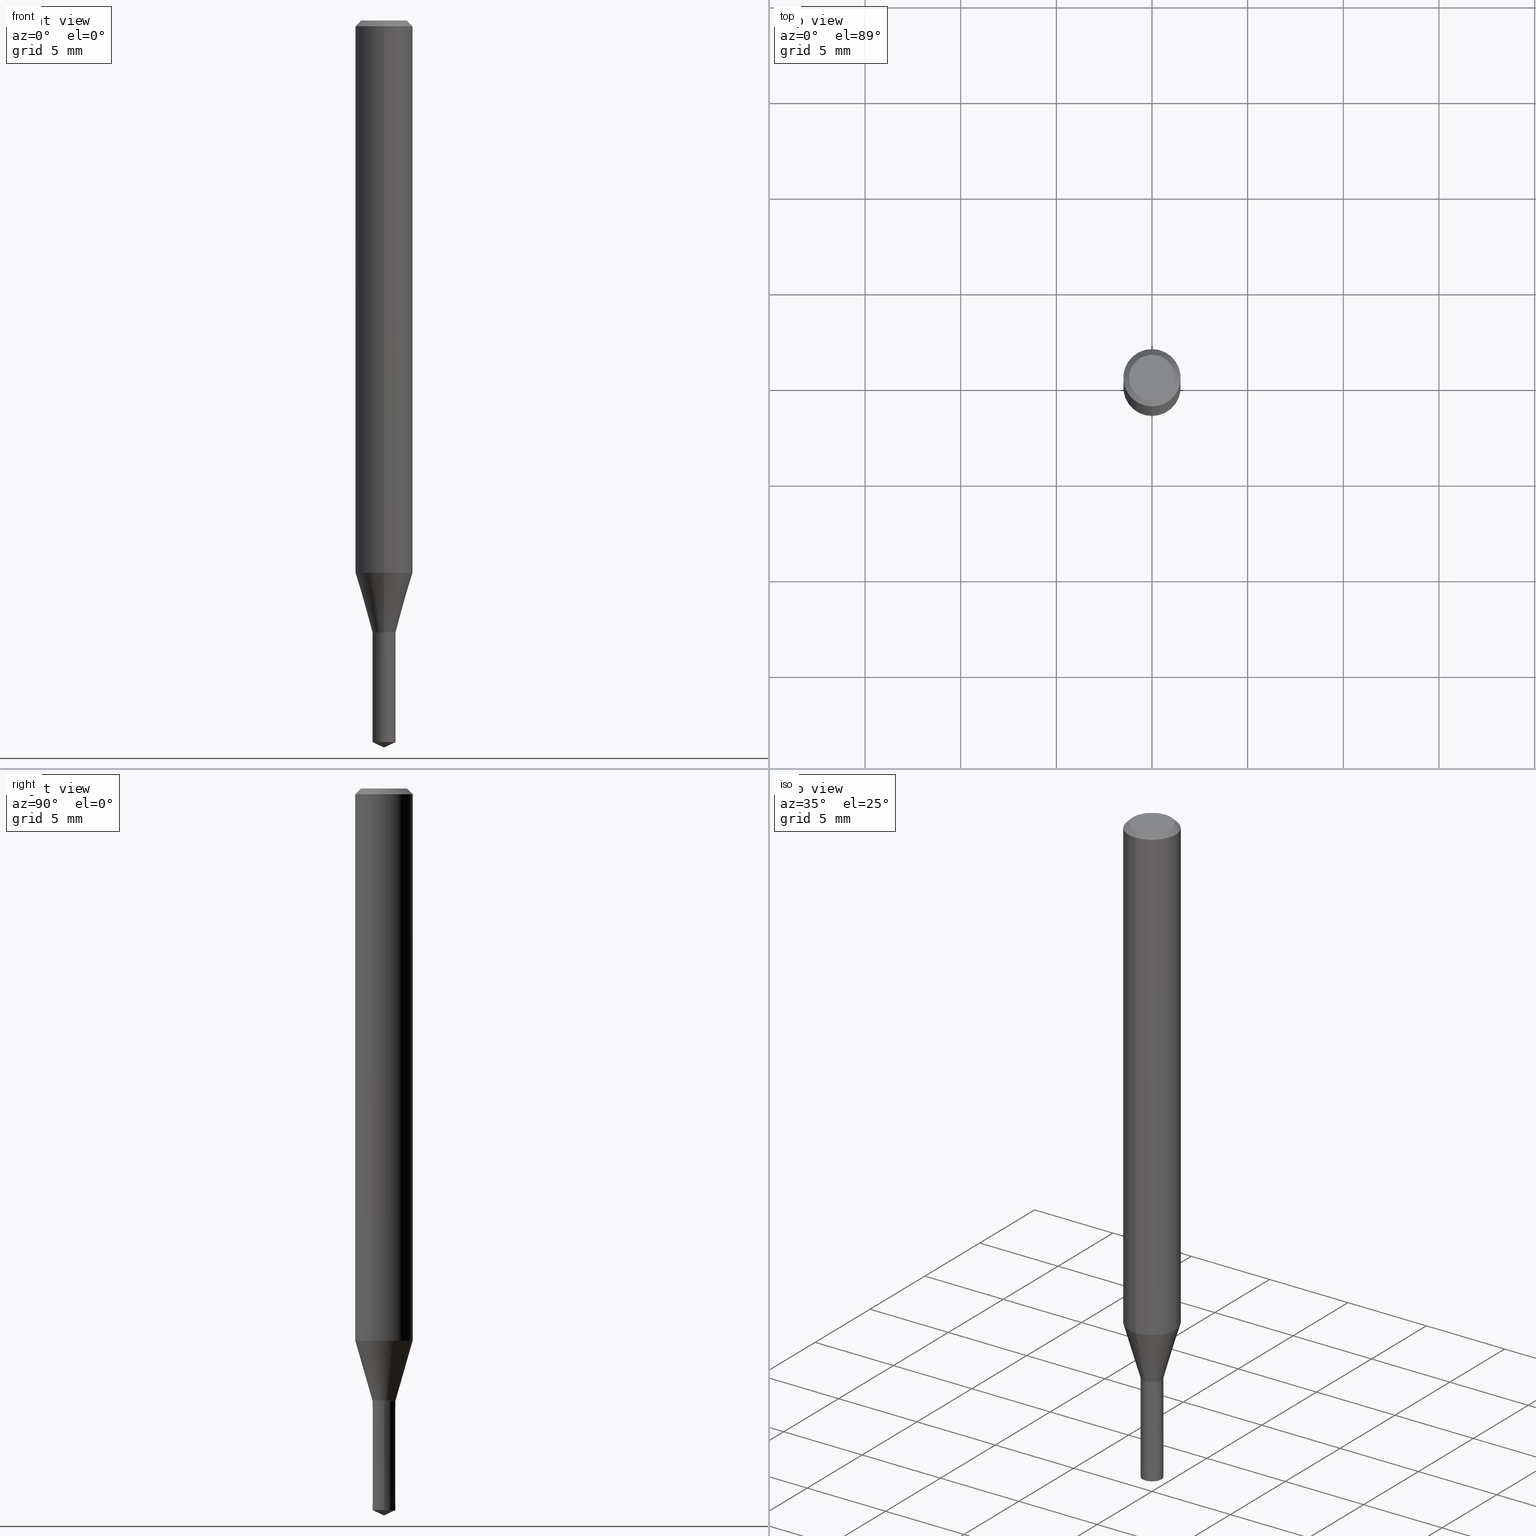
[diagram: canonical four-view strip — front | top / right | iso, engineering-drawing reading convention]
A machine part, canonical four-view strip (front | top / right | iso — engineering-drawing reading convention). The complete STEP part file that produces these views, byte-faithful:
ISO-10303-21;
HEADER;
FILE_DESCRIPTION(('no description'),'unknown implementation level');
FILE_NAME('UTDSX2120-060-Huellk.stp','  ',('CIMSOURCE GmbH'),('CADClick - KiM GmbH - www.kimweb.de'),'unknown preprocess','ACIS','unknown authorization');
FILE_SCHEMA(('automotive_design'));
ENDSEC;
DATA;
#1=MECHANICAL_DESIGN_GEOMETRIC_PRESENTATION_REPRESENTATION(' ',(#14,#15,#16,#17,#18,#19,#20,#21,#22,#23,#24,#25,#26,#27,#28,#29,#30,#31,#32,#33,#34,#35,#36,#37,#38,#39,#40,#41,#42,#43,#44,#45,#46,#47,#48,#49,#50,#51,#52,#53,#54,#55,#56,#57,#58,#59,#60,#61,#62,#63,#64,#65,#66,#67,#68,#69,#70,#71),#10);
#2=PRODUCT_DEFINITION_CONTEXT('',#72,'design');
#3=APPLICATION_PROTOCOL_DEFINITION('INTERNATIONAL STANDARD','automotive_design',1994,#72);
#4=PRODUCT_CATEGORY_RELATIONSHIP('NONE','NONE',#73,#74);
#5=SHAPE_DEFINITION_REPRESENTATION(#75,#76);
#6=PRODUCT_DEFINITION_CONTEXT('',#77,'design');
#7=APPLICATION_PROTOCOL_DEFINITION('INTERNATIONAL STANDARD','automotive_design',1994,#77);
#8=PRODUCT_CATEGORY_RELATIONSHIP('NONE','NONE',#78,#79);
#9=SHAPE_DEFINITION_REPRESENTATION(#80,#81);
#10= (GEOMETRIC_REPRESENTATION_CONTEXT(3)GLOBAL_UNCERTAINTY_ASSIGNED_CONTEXT((#84))GLOBAL_UNIT_ASSIGNED_CONTEXT((#86,#87,#88))REPRESENTATION_CONTEXT('NONE','WORKSPACE'));
#14=STYLED_ITEM('',(#90),#91);
#15=STYLED_ITEM('',(#92),#93);
#16=STYLED_ITEM('',(#94),#95);
#17=STYLED_ITEM('',(#96),#97);
#18=STYLED_ITEM('',(#98),#99);
#19=STYLED_ITEM('',(#100),#101);
#20=STYLED_ITEM('',(#102),#103);
#21=STYLED_ITEM('',(#104),#105);
#22=STYLED_ITEM('',(#106),#107);
#23=STYLED_ITEM('',(#108),#109);
#24=STYLED_ITEM('',(#110),#111);
#25=STYLED_ITEM('',(#112),#113);
#26=STYLED_ITEM('',(#114),#115);
#27=STYLED_ITEM('',(#116),#117);
#28=STYLED_ITEM('',(#118),#119);
#29=STYLED_ITEM('',(#120),#121);
#30=STYLED_ITEM('',(#122),#123);
#31=STYLED_ITEM('',(#124),#125);
#32=STYLED_ITEM('',(#126),#127);
#33=STYLED_ITEM('',(#128),#129);
#34=STYLED_ITEM('',(#130),#131);
#35=STYLED_ITEM('',(#132),#133);
#36=STYLED_ITEM('',(#134),#135);
#37=STYLED_ITEM('',(#136),#137);
#38=STYLED_ITEM('',(#138),#139);
#39=STYLED_ITEM('',(#140),#141);
#40=STYLED_ITEM('',(#142),#143);
#41=STYLED_ITEM('',(#144),#145);
#42=STYLED_ITEM('',(#146),#147);
#43=STYLED_ITEM('',(#148),#149);
#44=STYLED_ITEM('',(#150),#151);
#45=STYLED_ITEM('',(#152),#153);
#46=STYLED_ITEM('',(#154),#155);
#47=STYLED_ITEM('',(#156),#157);
#48=STYLED_ITEM('',(#158),#159);
#49=STYLED_ITEM('',(#160),#161);
#50=STYLED_ITEM('',(#162),#163);
#51=STYLED_ITEM('',(#164),#165);
#52=STYLED_ITEM('',(#166),#167);
#53=STYLED_ITEM('',(#168),#169);
#54=STYLED_ITEM('',(#170),#171);
#55=STYLED_ITEM('',(#172),#173);
#56=STYLED_ITEM('',(#174),#175);
#57=STYLED_ITEM('',(#176),#177);
#58=STYLED_ITEM('',(#178),#179);
#59=STYLED_ITEM('',(#180),#181);
#60=STYLED_ITEM('',(#182),#183);
#61=STYLED_ITEM('',(#184),#185);
#62=STYLED_ITEM('',(#186),#187);
#63=STYLED_ITEM('',(#188),#189);
#64=STYLED_ITEM('',(#190),#191);
#65=STYLED_ITEM('',(#192),#193);
#66=STYLED_ITEM('',(#194),#195);
#67=STYLED_ITEM('',(#196),#197);
#68=STYLED_ITEM('',(#198),#199);
#69=STYLED_ITEM('',(#200),#201);
#70=STYLED_ITEM('',(#202),#203);
#71=STYLED_ITEM('',(#204),#205);
#72=APPLICATION_CONTEXT(' ');
#73=PRODUCT_CATEGORY('part','NONE');
#74=PRODUCT_RELATED_PRODUCT_CATEGORY('detail',' ',(#206));
#75=PRODUCT_DEFINITION_SHAPE('NONE','NONE',#207);
#76=ADVANCED_BREP_SHAPE_REPRESENTATION('1',(#185,#208),#10);
#77=APPLICATION_CONTEXT(' ');
#78=PRODUCT_CATEGORY('part','NONE');
#79=PRODUCT_RELATED_PRODUCT_CATEGORY('detail',' ',(#209));
#80=PRODUCT_DEFINITION_SHAPE('NONE','NONE',#210);
#81=ADVANCED_BREP_SHAPE_REPRESENTATION('2',(#125,#211),#10);
#84=UNCERTAINTY_MEASURE_WITH_UNIT(LENGTH_MEASURE(1.0E-006),#86,'','');
#86= (CONVERSION_BASED_UNIT('MILLIMETRE',#214)LENGTH_UNIT()NAMED_UNIT(#217));
#87= (NAMED_UNIT(#219)PLANE_ANGLE_UNIT()SI_UNIT($,.RADIAN.));
#88= (NAMED_UNIT(#219)SOLID_ANGLE_UNIT()SI_UNIT($,.STERADIAN.));
#90=PRESENTATION_STYLE_ASSIGNMENT((#225));
#91=ADVANCED_FACE('',(#226),#227,.T.);
#92=PRESENTATION_STYLE_ASSIGNMENT((#228));
#93=EDGE_CURVE('',#117,#113,#229,.T.);
#94=PRESENTATION_STYLE_ASSIGNMENT((#230));
#95=ADVANCED_FACE('',(#231),#232,.T.);
#96=PRESENTATION_STYLE_ASSIGNMENT((#233));
#97=ADVANCED_FACE('',(#234),#235,.T.);
#98=PRESENTATION_STYLE_ASSIGNMENT((#236));
#99=ADVANCED_FACE('',(#237),#238,.T.);
#100=PRESENTATION_STYLE_ASSIGNMENT((#239));
#101=EDGE_CURVE('',#193,#187,#240,.T.);
#102=PRESENTATION_STYLE_ASSIGNMENT((#241));
#103=EDGE_CURVE('',#187,#193,#242,.T.);
#104=PRESENTATION_STYLE_ASSIGNMENT((#243));
#105=EDGE_CURVE('',#115,#119,#244,.T.);
#106=PRESENTATION_STYLE_ASSIGNMENT((#245));
#107=EDGE_CURVE('',#113,#203,#246,.T.);
#108=PRESENTATION_STYLE_ASSIGNMENT((#247));
#109=ADVANCED_FACE('',(#248),#249,.T.);
#110=PRESENTATION_STYLE_ASSIGNMENT((#250));
#111=EDGE_CURVE('',#173,#199,#251,.T.);
#112=PRESENTATION_STYLE_ASSIGNMENT((#252));
#113=VERTEX_POINT('',#253);
#114=PRESENTATION_STYLE_ASSIGNMENT((#254));
#115=VERTEX_POINT('',#255);
#116=PRESENTATION_STYLE_ASSIGNMENT((#256));
#117=VERTEX_POINT('',#257);
#118=PRESENTATION_STYLE_ASSIGNMENT((#258));
#119=VERTEX_POINT('',#259);
#120=PRESENTATION_STYLE_ASSIGNMENT((#260));
#121=EDGE_CURVE('',#139,#155,#261,.T.);
#122=PRESENTATION_STYLE_ASSIGNMENT((#262));
#123=EDGE_CURVE('',#113,#115,#263,.T.);
#124=PRESENTATION_STYLE_ASSIGNMENT((#264));
#125=MANIFOLD_SOLID_BREP('2',#265);
#126=PRESENTATION_STYLE_ASSIGNMENT((#266));
#127=ADVANCED_FACE('',(#267),#268,.T.);
#128=PRESENTATION_STYLE_ASSIGNMENT((#269));
#129=ADVANCED_FACE('',(#270),#271,.T.);
#130=PRESENTATION_STYLE_ASSIGNMENT((#272));
#131=EDGE_CURVE('',#193,#199,#273,.T.);
#132=PRESENTATION_STYLE_ASSIGNMENT((#274));
#133=EDGE_CURVE('',#155,#173,#275,.T.);
#134=PRESENTATION_STYLE_ASSIGNMENT((#276));
#135=ADVANCED_FACE('',(#277),#278,.T.);
#136=PRESENTATION_STYLE_ASSIGNMENT((#279));
#137=VERTEX_POINT('',#280);
#138=PRESENTATION_STYLE_ASSIGNMENT((#281));
#139=VERTEX_POINT('',#282);
#140=PRESENTATION_STYLE_ASSIGNMENT((#283));
#141=ADVANCED_FACE('',(#284),#285,.T.);
#142=PRESENTATION_STYLE_ASSIGNMENT((#286));
#143=ADVANCED_FACE('',(#287),#288,.T.);
#144=PRESENTATION_STYLE_ASSIGNMENT((#289));
#145=ADVANCED_FACE('',(#290),#291,.T.);
#146=PRESENTATION_STYLE_ASSIGNMENT((#292));
#147=EDGE_CURVE('',#187,#137,#293,.T.);
#148=PRESENTATION_STYLE_ASSIGNMENT((#294));
#149=EDGE_CURVE('',#155,#139,#295,.T.);
#150=PRESENTATION_STYLE_ASSIGNMENT((#296));
#151=EDGE_CURVE('',#173,#187,#297,.T.);
#152=PRESENTATION_STYLE_ASSIGNMENT((#298));
#153=EDGE_CURVE('',#119,#117,#299,.T.);
#154=PRESENTATION_STYLE_ASSIGNMENT((#300));
#155=VERTEX_POINT('',#301);
#156=PRESENTATION_STYLE_ASSIGNMENT((#302));
#157=VERTEX_POINT('',#303);
#158=PRESENTATION_STYLE_ASSIGNMENT((#304));
#159=ADVANCED_FACE('',(#305),#306,.T.);
#160=PRESENTATION_STYLE_ASSIGNMENT((#307));
#161=VERTEX_POINT('',#308);
#162=PRESENTATION_STYLE_ASSIGNMENT((#309));
#163=EDGE_CURVE('',#167,#161,#310,.T.);
#164=PRESENTATION_STYLE_ASSIGNMENT((#311));
#165=EDGE_CURVE('',#199,#139,#312,.T.);
#166=PRESENTATION_STYLE_ASSIGNMENT((#313));
#167=VERTEX_POINT('',#314);
#168=PRESENTATION_STYLE_ASSIGNMENT((#315));
#169=EDGE_CURVE('',#117,#119,#316,.T.);
#170=PRESENTATION_STYLE_ASSIGNMENT((#317));
#171=EDGE_CURVE('',#157,#193,#318,.T.);
#172=PRESENTATION_STYLE_ASSIGNMENT((#319));
#173=VERTEX_POINT('',#320);
#174=PRESENTATION_STYLE_ASSIGNMENT((#321));
#175=EDGE_CURVE('',#137,#157,#322,.T.);
#176=PRESENTATION_STYLE_ASSIGNMENT((#323));
#177=EDGE_CURVE('',#157,#137,#324,.T.);
#178=PRESENTATION_STYLE_ASSIGNMENT((#325));
#179=EDGE_CURVE('',#161,#157,#326,.T.);
#180=PRESENTATION_STYLE_ASSIGNMENT((#327));
#181=EDGE_CURVE('',#199,#173,#328,.T.);
#182=PRESENTATION_STYLE_ASSIGNMENT((#329));
#183=EDGE_CURVE('',#161,#167,#330,.T.);
#184=PRESENTATION_STYLE_ASSIGNMENT((#331));
#185=MANIFOLD_SOLID_BREP('1',#332);
#186=PRESENTATION_STYLE_ASSIGNMENT((#333));
#187=VERTEX_POINT('',#334);
#188=PRESENTATION_STYLE_ASSIGNMENT((#335));
#189=ADVANCED_FACE('',(#336),#337,.T.);
#190=PRESENTATION_STYLE_ASSIGNMENT((#338));
#191=EDGE_CURVE('',#203,#115,#339,.T.);
#192=PRESENTATION_STYLE_ASSIGNMENT((#340));
#193=VERTEX_POINT('',#341);
#194=PRESENTATION_STYLE_ASSIGNMENT((#342));
#195=ADVANCED_FACE('',(#343),#344,.T.);
#196=PRESENTATION_STYLE_ASSIGNMENT((#345));
#197=ADVANCED_FACE('',(#346),#347,.T.);
#198=PRESENTATION_STYLE_ASSIGNMENT((#348));
#199=VERTEX_POINT('',#349);
#200=PRESENTATION_STYLE_ASSIGNMENT((#350));
#201=EDGE_CURVE('',#115,#113,#351,.T.);
#202=PRESENTATION_STYLE_ASSIGNMENT((#352));
#203=VERTEX_POINT('',#353);
#204=PRESENTATION_STYLE_ASSIGNMENT((#354));
#205=EDGE_CURVE('',#137,#167,#355,.T.);
#206=PRODUCT('1','1','PART-1-DESC',(#356));
#207=PRODUCT_DEFINITION('NONE','NONE',#357,#2);
#208=AXIS2_PLACEMENT_3D('',#358,#359,#360);
#209=PRODUCT('2','2','PART-2-DESC',(#361));
#210=PRODUCT_DEFINITION('NONE','NONE',#362,#6);
#211=AXIS2_PLACEMENT_3D('',#363,#364,#365);
#214=LENGTH_MEASURE_WITH_UNIT(LENGTH_MEASURE(1.0),#366);
#217=DIMENSIONAL_EXPONENTS(1.0,0.0,0.0,0.0,0.0,0.0,0.0);
#219=DIMENSIONAL_EXPONENTS(0.0,0.0,0.0,0.0,0.0,0.0,0.0);
#225=SURFACE_STYLE_USAGE(.BOTH.,#367);
#226=FACE_OUTER_BOUND('',#368,.T.);
#227=CYLINDRICAL_SURFACE('',#369,1.5);
#228=CURVE_STYLE('',#370,POSITIVE_LENGTH_MEASURE(1.0E-006),#371);
#229=LINE('',#372,#373);
#230=SURFACE_STYLE_USAGE(.BOTH.,#374);
#231=FACE_OUTER_BOUND('',#375,.T.);
#232=CONICAL_SURFACE('',#376,1.05,0.279298190793163);
#233=SURFACE_STYLE_USAGE(.BOTH.,#377);
#234=FACE_OUTER_BOUND('',#378,.T.);
#235=CONICAL_SURFACE('',#379,0.3,1.13446402049478);
#236=SURFACE_STYLE_USAGE(.BOTH.,#380);
#237=FACE_OUTER_BOUND('',#381,.T.);
#238=CONICAL_SURFACE('',#382,1.05,0.279298190793163);
#239=CURVE_STYLE('',#383,POSITIVE_LENGTH_MEASURE(1.0E-006),#384);
#240=CIRCLE('',#385,1.5);
#241=CURVE_STYLE('',#386,POSITIVE_LENGTH_MEASURE(1.0E-006),#387);
#242=CIRCLE('',#388,1.5);
#243=CURVE_STYLE('',#389,POSITIVE_LENGTH_MEASURE(1.0E-006),#390);
#244=LINE('',#391,#392);
#245=CURVE_STYLE('',#393,POSITIVE_LENGTH_MEASURE(1.0E-006),#394);
#246=LINE('',#395,#396);
#247=SURFACE_STYLE_USAGE(.BOTH.,#397);
#248=FACE_OUTER_BOUND('',#398,.T.);
#249=CONICAL_SURFACE('',#399,1.35,0.785398163397447);
#250=CURVE_STYLE('',#400,POSITIVE_LENGTH_MEASURE(1.0E-006),#401);
#251=CIRCLE('',#402,1.5);
#252=POINT_STYLE(' ',#403,POSITIVE_LENGTH_MEASURE(1.0E-006),#404);
#253=CARTESIAN_POINT('',(-0.6,0.0,-37.72021541));
#254=POINT_STYLE(' ',#405,POSITIVE_LENGTH_MEASURE(1.0E-006),#406);
#255=CARTESIAN_POINT('',(0.6,7.34763812293426E-017,-37.72021541));
#256=POINT_STYLE(' ',#407,POSITIVE_LENGTH_MEASURE(1.0E-006),#408);
#257=CARTESIAN_POINT('',(-0.601,0.0,-32.0));
#258=POINT_STYLE(' ',#409,POSITIVE_LENGTH_MEASURE(1.0E-006),#410);
#259=CARTESIAN_POINT('',(0.601,7.35988418647249E-017,-32.0));
#260=CURVE_STYLE('',#411,POSITIVE_LENGTH_MEASURE(1.0E-006),#412);
#261=CIRCLE('',#413,1.2);
#262=CURVE_STYLE('',#414,POSITIVE_LENGTH_MEASURE(1.0E-006),#415);
#263=CIRCLE('',#416,0.6);
#264=SURFACE_STYLE_USAGE(.BOTH.,#417);
#265=CLOSED_SHELL('',(#159,#143,#127,#189,#97));
#266=SURFACE_STYLE_USAGE(.BOTH.,#418);
#267=FACE_OUTER_BOUND('',#419,.T.);
#268=PLANE('',#420);
#269=SURFACE_STYLE_USAGE(.BOTH.,#421);
#270=FACE_OUTER_BOUND('',#422,.T.);
#271=PLANE('',#423);
#272=CURVE_STYLE('',#424,POSITIVE_LENGTH_MEASURE(1.0E-006),#425);
#273=LINE('',#426,#427);
#274=CURVE_STYLE('',#428,POSITIVE_LENGTH_MEASURE(1.0E-006),#429);
#275=LINE('',#430,#431);
#276=SURFACE_STYLE_USAGE(.BOTH.,#432);
#277=FACE_OUTER_BOUND('',#433,.T.);
#278=CONICAL_SURFACE('',#434,0.60025,0.523598775598234);
#279=POINT_STYLE(' ',#435,POSITIVE_LENGTH_MEASURE(1.0E-006),#436);
#280=CARTESIAN_POINT('',(0.0,0.6,-31.9991339745962));
#281=POINT_STYLE(' ',#437,POSITIVE_LENGTH_MEASURE(1.0E-006),#438);
#282=CARTESIAN_POINT('',(1.46952762458685E-016,-1.2,0.0));
#283=SURFACE_STYLE_USAGE(.BOTH.,#439);
#284=FACE_OUTER_BOUND('',#440,.T.);
#285=CONICAL_SURFACE('',#441,1.35,0.785398163397447);
#286=SURFACE_STYLE_USAGE(.BOTH.,#442);
#287=FACE_OUTER_BOUND('',#443,.T.);
#288=CONICAL_SURFACE('',#444,0.6005,0.000174818589535044);
#289=SURFACE_STYLE_USAGE(.BOTH.,#445);
#290=FACE_OUTER_BOUND('',#446,.T.);
#291=CONICAL_SURFACE('',#447,0.60025,0.523598775598234);
#292=CURVE_STYLE('',#448,POSITIVE_LENGTH_MEASURE(1.0E-006),#449);
#293=LINE('',#450,#451);
#294=CURVE_STYLE('',#452,POSITIVE_LENGTH_MEASURE(1.0E-006),#453);
#295=CIRCLE('',#454,1.2);
#296=CURVE_STYLE('',#455,POSITIVE_LENGTH_MEASURE(1.0E-006),#456);
#297=LINE('',#457,#458);
#298=CURVE_STYLE('',#459,POSITIVE_LENGTH_MEASURE(1.0E-006),#460);
#299=CIRCLE('',#461,0.601);
#300=POINT_STYLE(' ',#462,POSITIVE_LENGTH_MEASURE(1.0E-006),#463);
#301=CARTESIAN_POINT('',(0.0,1.2,0.0));
#302=POINT_STYLE(' ',#464,POSITIVE_LENGTH_MEASURE(1.0E-006),#465);
#303=CARTESIAN_POINT('',(7.34763812293426E-017,-0.6,-31.9991339745962));
#304=SURFACE_STYLE_USAGE(.BOTH.,#466);
#305=FACE_OUTER_BOUND('',#467,.T.);
#306=CONICAL_SURFACE('',#468,0.3,1.13446402049478);
#307=POINT_STYLE(' ',#469,POSITIVE_LENGTH_MEASURE(1.0E-006),#470);
#308=CARTESIAN_POINT('',(7.35376115470337E-017,-0.6005,-32.0));
#309=CURVE_STYLE('',#471,POSITIVE_LENGTH_MEASURE(1.0E-006),#472);
#310=CIRCLE('',#473,0.6005);
#311=CURVE_STYLE('',#474,POSITIVE_LENGTH_MEASURE(1.0E-006),#475);
#312=LINE('',#476,#477);
#313=POINT_STYLE(' ',#478,POSITIVE_LENGTH_MEASURE(1.0E-006),#479);
#314=CARTESIAN_POINT('',(0.0,0.6005,-32.0));
#315=CURVE_STYLE('',#480,POSITIVE_LENGTH_MEASURE(1.0E-006),#481);
#316=CIRCLE('',#482,0.601);
#317=CURVE_STYLE('',#483,POSITIVE_LENGTH_MEASURE(1.0E-006),#484);
#318=LINE('',#485,#486);
#319=POINT_STYLE(' ',#487,POSITIVE_LENGTH_MEASURE(1.0E-006),#488);
#320=CARTESIAN_POINT('',(0.0,1.5,-0.300000000000001));
#321=CURVE_STYLE('',#489,POSITIVE_LENGTH_MEASURE(1.0E-006),#490);
#322=CIRCLE('',#491,0.6);
#323=CURVE_STYLE('',#492,POSITIVE_LENGTH_MEASURE(1.0E-006),#493);
#324=CIRCLE('',#494,0.6);
#325=CURVE_STYLE('',#495,POSITIVE_LENGTH_MEASURE(1.0E-006),#496);
#326=LINE('',#497,#498);
#327=CURVE_STYLE('',#499,POSITIVE_LENGTH_MEASURE(1.0E-006),#500);
#328=CIRCLE('',#501,1.5);
#329=CURVE_STYLE('',#502,POSITIVE_LENGTH_MEASURE(1.0E-006),#503);
#330=CIRCLE('',#504,0.6005);
#331=SURFACE_STYLE_USAGE(.BOTH.,#505);
#332=CLOSED_SHELL('',(#135,#95,#91,#109,#197,#141,#195,#99,#145,#129));
#333=POINT_STYLE(' ',#506,POSITIVE_LENGTH_MEASURE(1.0E-006),#507);
#334=CARTESIAN_POINT('',(0.0,1.5,-28.861));
#335=SURFACE_STYLE_USAGE(.BOTH.,#508);
#336=FACE_OUTER_BOUND('',#509,.T.);
#337=CONICAL_SURFACE('',#510,0.6005,0.000174818589535044);
#338=CURVE_STYLE('',#511,POSITIVE_LENGTH_MEASURE(1.0E-006),#512);
#339=LINE('',#513,#514);
#340=POINT_STYLE(' ',#515,POSITIVE_LENGTH_MEASURE(1.0E-006),#516);
#341=CARTESIAN_POINT('',(1.83690953073357E-016,-1.5,-28.861));
#342=SURFACE_STYLE_USAGE(.BOTH.,#517);
#343=FACE_OUTER_BOUND('',#518,.T.);
#344=CYLINDRICAL_SURFACE('',#519,1.5);
#345=SURFACE_STYLE_USAGE(.BOTH.,#520);
#346=FACE_OUTER_BOUND('',#521,.T.);
#347=PLANE('',#522);
#348=POINT_STYLE(' ',#523,POSITIVE_LENGTH_MEASURE(1.0E-006),#524);
#349=CARTESIAN_POINT('',(1.83690953073357E-016,-1.5,-0.300000000000001));
#350=CURVE_STYLE('',#525,POSITIVE_LENGTH_MEASURE(1.0E-006),#526);
#351=CIRCLE('',#527,0.6);
#352=POINT_STYLE(' ',#528,POSITIVE_LENGTH_MEASURE(1.0E-006),#529);
#353=CARTESIAN_POINT('',(0.0,0.0,-38.0));
#354=CURVE_STYLE('',#530,POSITIVE_LENGTH_MEASURE(1.0E-006),#531);
#355=LINE('',#532,#533);
#356=PRODUCT_CONTEXT('',#72,'mechanical');
#357=PRODUCT_DEFINITION_FORMATION_WITH_SPECIFIED_SOURCE(' ','NONE',#206,.NOT_KNOWN.);
#358=CARTESIAN_POINT('',(0.0,0.0,0.0));
#359=DIRECTION('',(0.0,0.0,1.0));
#360=DIRECTION('',(1.0,0.0,0.0));
#361=PRODUCT_CONTEXT('',#77,'mechanical');
#362=PRODUCT_DEFINITION_FORMATION_WITH_SPECIFIED_SOURCE(' ','NONE',#209,.NOT_KNOWN.);
#363=CARTESIAN_POINT('',(0.0,0.0,0.0));
#364=DIRECTION('',(0.0,0.0,1.0));
#365=DIRECTION('',(1.0,0.0,0.0));
#366= (NAMED_UNIT(#217)LENGTH_UNIT()SI_UNIT(.MILLI.,.METRE.));
#367=SURFACE_SIDE_STYLE('',(#535));
#368=EDGE_LOOP('',(#536,#537,#538,#539));
#369=AXIS2_PLACEMENT_3D('',#540,#541,#542);
#370=DRAUGHTING_PRE_DEFINED_CURVE_FONT('continuous');
#371=COLOUR_RGB('',0.800000011920929,0.800000011920929,0.800000011920929);
#372=CARTESIAN_POINT('',(-0.6005,-7.35376115470338E-017,-34.860107705));
#373=VECTOR('',#543,1.0);
#374=SURFACE_SIDE_STYLE('',(#544));
#375=EDGE_LOOP('',(#545,#546,#547,#548));
#376=AXIS2_PLACEMENT_3D('',#549,#550,#551);
#377=SURFACE_SIDE_STYLE('',(#552));
#378=EDGE_LOOP('',(#553,#554,#555));
#379=AXIS2_PLACEMENT_3D('',#556,#557,#558);
#380=SURFACE_SIDE_STYLE('',(#559));
#381=EDGE_LOOP('',(#560,#561,#562,#563));
#382=AXIS2_PLACEMENT_3D('',#564,#565,#566);
#383=DRAUGHTING_PRE_DEFINED_CURVE_FONT('continuous');
#384=COLOUR_RGB('',0.498039215803146,0.498039215803146,0.498039215803146);
#385=AXIS2_PLACEMENT_3D('',#567,#568,#569);
#386=DRAUGHTING_PRE_DEFINED_CURVE_FONT('continuous');
#387=COLOUR_RGB('',0.498039215803146,0.498039215803146,0.498039215803146);
#388=AXIS2_PLACEMENT_3D('',#570,#571,#572);
#389=DRAUGHTING_PRE_DEFINED_CURVE_FONT('continuous');
#390=COLOUR_RGB('',0.800000011920929,0.800000011920929,0.800000011920929);
#391=CARTESIAN_POINT('',(0.6005,7.35376115470338E-017,-34.860107705));
#392=VECTOR('',#573,1.0);
#393=DRAUGHTING_PRE_DEFINED_CURVE_FONT('continuous');
#394=COLOUR_RGB('',0.800000011920929,0.800000011920929,0.800000011920929);
#395=CARTESIAN_POINT('',(-0.3,-3.67381906146713E-017,-37.860107705));
#396=VECTOR('',#574,1.0);
#397=SURFACE_SIDE_STYLE('',(#575));
#398=EDGE_LOOP('',(#576,#577,#578,#579));
#399=AXIS2_PLACEMENT_3D('',#580,#581,#582);
#400=DRAUGHTING_PRE_DEFINED_CURVE_FONT('continuous');
#401=COLOUR_RGB('',0.498039215803146,0.498039215803146,0.498039215803146);
#402=AXIS2_PLACEMENT_3D('',#583,#584,#585);
#403=PRE_DEFINED_MARKER('');
#404=COLOUR_RGB('',0.800000011920929,0.800000011920929,0.800000011920929);
#405=PRE_DEFINED_MARKER('');
#406=COLOUR_RGB('',0.800000011920929,0.800000011920929,0.800000011920929);
#407=PRE_DEFINED_MARKER('');
#408=COLOUR_RGB('',0.800000011920929,0.800000011920929,0.800000011920929);
#409=PRE_DEFINED_MARKER('');
#410=COLOUR_RGB('',0.800000011920929,0.800000011920929,0.800000011920929);
#411=DRAUGHTING_PRE_DEFINED_CURVE_FONT('continuous');
#412=COLOUR_RGB('',0.498039215803146,0.498039215803146,0.498039215803146);
#413=AXIS2_PLACEMENT_3D('',#586,#587,#588);
#414=DRAUGHTING_PRE_DEFINED_CURVE_FONT('continuous');
#415=COLOUR_RGB('',0.800000011920929,0.800000011920929,0.800000011920929);
#416=AXIS2_PLACEMENT_3D('',#589,#590,#591);
#417=SURFACE_SIDE_STYLE('',(#592));
#418=SURFACE_SIDE_STYLE('',(#593));
#419=EDGE_LOOP('',(#594,#595));
#420=AXIS2_PLACEMENT_3D('',#596,#597,#598);
#421=SURFACE_SIDE_STYLE('',(#599));
#422=EDGE_LOOP('',(#600,#601));
#423=AXIS2_PLACEMENT_3D('',#602,#603,#604);
#424=DRAUGHTING_PRE_DEFINED_CURVE_FONT('continuous');
#425=COLOUR_RGB('',0.498039215803146,0.498039215803146,0.498039215803146);
#426=CARTESIAN_POINT('',(1.83690953073357E-016,-1.5,-14.5805));
#427=VECTOR('',#605,1.0);
#428=DRAUGHTING_PRE_DEFINED_CURVE_FONT('continuous');
#429=COLOUR_RGB('',0.498039215803146,0.498039215803146,0.498039215803146);
#430=CARTESIAN_POINT('',(-1.65321857766021E-016,1.35,-0.149999999999999));
#431=VECTOR('',#606,1.0);
#432=SURFACE_SIDE_STYLE('',(#607));
#433=EDGE_LOOP('',(#608,#609,#610,#611));
#434=AXIS2_PLACEMENT_3D('',#612,#613,#614);
#435=PRE_DEFINED_MARKER('');
#436=COLOUR_RGB('',0.498039215803146,0.498039215803146,0.498039215803146);
#437=PRE_DEFINED_MARKER('');
#438=COLOUR_RGB('',0.498039215803146,0.498039215803146,0.498039215803146);
#439=SURFACE_SIDE_STYLE('',(#615));
#440=EDGE_LOOP('',(#616,#617,#618,#619));
#441=AXIS2_PLACEMENT_3D('',#620,#621,#622);
#442=SURFACE_SIDE_STYLE('',(#623));
#443=EDGE_LOOP('',(#624,#625,#626,#627));
#444=AXIS2_PLACEMENT_3D('',#628,#629,#630);
#445=SURFACE_SIDE_STYLE('',(#631));
#446=EDGE_LOOP('',(#632,#633,#634,#635));
#447=AXIS2_PLACEMENT_3D('',#636,#637,#638);
#448=DRAUGHTING_PRE_DEFINED_CURVE_FONT('continuous');
#449=COLOUR_RGB('',0.498039215803146,0.498039215803146,0.498039215803146);
#450=CARTESIAN_POINT('',(-1.2858366715135E-016,1.05,-30.4300669872981));
#451=VECTOR('',#639,1.0);
#452=DRAUGHTING_PRE_DEFINED_CURVE_FONT('continuous');
#453=COLOUR_RGB('',0.498039215803146,0.498039215803146,0.498039215803146);
#454=AXIS2_PLACEMENT_3D('',#640,#641,#642);
#455=DRAUGHTING_PRE_DEFINED_CURVE_FONT('continuous');
#456=COLOUR_RGB('',0.498039215803146,0.498039215803146,0.498039215803146);
#457=CARTESIAN_POINT('',(-1.83690953073357E-016,1.5,-14.5805));
#458=VECTOR('',#643,1.0);
#459=DRAUGHTING_PRE_DEFINED_CURVE_FONT('continuous');
#460=COLOUR_RGB('',0.800000011920929,0.800000011920929,0.800000011920929);
#461=AXIS2_PLACEMENT_3D('',#644,#645,#646);
#462=PRE_DEFINED_MARKER('');
#463=COLOUR_RGB('',0.498039215803146,0.498039215803146,0.498039215803146);
#464=PRE_DEFINED_MARKER('');
#465=COLOUR_RGB('',0.498039215803146,0.498039215803146,0.498039215803146);
#466=SURFACE_SIDE_STYLE('',(#647));
#467=EDGE_LOOP('',(#648,#649,#650));
#468=AXIS2_PLACEMENT_3D('',#651,#652,#653);
#469=PRE_DEFINED_MARKER('');
#470=COLOUR_RGB('',0.498039215803146,0.498039215803146,0.498039215803146);
#471=DRAUGHTING_PRE_DEFINED_CURVE_FONT('continuous');
#472=COLOUR_RGB('',0.498039215803146,0.498039215803146,0.498039215803146);
#473=AXIS2_PLACEMENT_3D('',#654,#655,#656);
#474=DRAUGHTING_PRE_DEFINED_CURVE_FONT('continuous');
#475=COLOUR_RGB('',0.498039215803146,0.498039215803146,0.498039215803146);
#476=CARTESIAN_POINT('',(1.65321857766021E-016,-1.35,-0.149999999999999));
#477=VECTOR('',#657,1.0);
#478=PRE_DEFINED_MARKER('');
#479=COLOUR_RGB('',0.498039215803146,0.498039215803146,0.498039215803146);
#480=DRAUGHTING_PRE_DEFINED_CURVE_FONT('continuous');
#481=COLOUR_RGB('',0.800000011920929,0.800000011920929,0.800000011920929);
#482=AXIS2_PLACEMENT_3D('',#658,#659,#660);
#483=DRAUGHTING_PRE_DEFINED_CURVE_FONT('continuous');
#484=COLOUR_RGB('',0.498039215803146,0.498039215803146,0.498039215803146);
#485=CARTESIAN_POINT('',(1.2858366715135E-016,-1.05,-30.4300669872981));
#486=VECTOR('',#661,1.0);
#487=PRE_DEFINED_MARKER('');
#488=COLOUR_RGB('',0.498039215803146,0.498039215803146,0.498039215803146);
#489=DRAUGHTING_PRE_DEFINED_CURVE_FONT('continuous');
#490=COLOUR_RGB('',0.498039215803146,0.498039215803146,0.498039215803146);
#491=AXIS2_PLACEMENT_3D('',#662,#663,#664);
#492=DRAUGHTING_PRE_DEFINED_CURVE_FONT('continuous');
#493=COLOUR_RGB('',0.498039215803146,0.498039215803146,0.498039215803146);
#494=AXIS2_PLACEMENT_3D('',#665,#666,#667);
#495=DRAUGHTING_PRE_DEFINED_CURVE_FONT('continuous');
#496=COLOUR_RGB('',0.498039215803146,0.498039215803146,0.498039215803146);
#497=CARTESIAN_POINT('',(7.35069963881882E-017,-0.60025,-31.9995669872981));
#498=VECTOR('',#668,1.0);
#499=DRAUGHTING_PRE_DEFINED_CURVE_FONT('continuous');
#500=COLOUR_RGB('',0.498039215803146,0.498039215803146,0.498039215803146);
#501=AXIS2_PLACEMENT_3D('',#669,#670,#671);
#502=DRAUGHTING_PRE_DEFINED_CURVE_FONT('continuous');
#503=COLOUR_RGB('',0.498039215803146,0.498039215803146,0.498039215803146);
#504=AXIS2_PLACEMENT_3D('',#672,#673,#674);
#505=SURFACE_SIDE_STYLE('',(#675));
#506=PRE_DEFINED_MARKER('');
#507=COLOUR_RGB('',0.498039215803146,0.498039215803146,0.498039215803146);
#508=SURFACE_SIDE_STYLE('',(#676));
#509=EDGE_LOOP('',(#677,#678,#679,#680));
#510=AXIS2_PLACEMENT_3D('',#681,#682,#683);
#511=DRAUGHTING_PRE_DEFINED_CURVE_FONT('continuous');
#512=COLOUR_RGB('',0.800000011920929,0.800000011920929,0.800000011920929);
#513=CARTESIAN_POINT('',(0.3,3.67381906146713E-017,-37.860107705));
#514=VECTOR('',#684,1.0);
#515=PRE_DEFINED_MARKER('');
#516=COLOUR_RGB('',0.498039215803146,0.498039215803146,0.498039215803146);
#517=SURFACE_SIDE_STYLE('',(#685));
#518=EDGE_LOOP('',(#686,#687,#688,#689));
#519=AXIS2_PLACEMENT_3D('',#690,#691,#692);
#520=SURFACE_SIDE_STYLE('',(#693));
#521=EDGE_LOOP('',(#694,#695));
#522=AXIS2_PLACEMENT_3D('',#696,#697,#698);
#523=PRE_DEFINED_MARKER('');
#524=COLOUR_RGB('',0.498039215803146,0.498039215803146,0.498039215803146);
#525=DRAUGHTING_PRE_DEFINED_CURVE_FONT('continuous');
#526=COLOUR_RGB('',0.800000011920929,0.800000011920929,0.800000011920929);
#527=AXIS2_PLACEMENT_3D('',#699,#700,#701);
#528=PRE_DEFINED_MARKER('');
#529=COLOUR_RGB('',0.800000011920929,0.800000011920929,0.800000011920929);
#530=DRAUGHTING_PRE_DEFINED_CURVE_FONT('continuous');
#531=COLOUR_RGB('',0.498039215803146,0.498039215803146,0.498039215803146);
#532=CARTESIAN_POINT('',(-7.35069963881882E-017,0.60025,-31.9995669872981));
#533=VECTOR('',#702,1.0);
#535=SURFACE_STYLE_FILL_AREA(#703);
#536=ORIENTED_EDGE('',*,*,#151,.F.);
#537=ORIENTED_EDGE('',*,*,#111,.T.);
#538=ORIENTED_EDGE('',*,*,#131,.F.);
#539=ORIENTED_EDGE('',*,*,#103,.F.);
#540=CARTESIAN_POINT('',(0.0,0.0,-14.5805));
#541=DIRECTION('',(-0.0,-0.0,1.0));
#542=DIRECTION('',(0.0,1.0,0.0));
#543=DIRECTION('',(0.000174818588644589,2.14083954420425E-020,-0.99999998471923));
#544=SURFACE_STYLE_FILL_AREA(#704);
#545=ORIENTED_EDGE('',*,*,#147,.F.);
#546=ORIENTED_EDGE('',*,*,#103,.T.);
#547=ORIENTED_EDGE('',*,*,#171,.F.);
#548=ORIENTED_EDGE('',*,*,#175,.F.);
#549=CARTESIAN_POINT('',(0.0,0.0,-30.4300669872981));
#550=DIRECTION('',(-0.0,-0.0,1.0));
#551=DIRECTION('',(0.0,1.0,0.0));
#552=SURFACE_STYLE_FILL_AREA(#705);
#553=ORIENTED_EDGE('',*,*,#191,.T.);
#554=ORIENTED_EDGE('',*,*,#201,.T.);
#555=ORIENTED_EDGE('',*,*,#107,.T.);
#556=CARTESIAN_POINT('',(0.0,0.0,-37.860107705));
#557=DIRECTION('',(-0.0,-0.0,1.0));
#558=DIRECTION('',(-1.0,0.0,0.0));
#559=SURFACE_STYLE_FILL_AREA(#706);
#560=ORIENTED_EDGE('',*,*,#147,.T.);
#561=ORIENTED_EDGE('',*,*,#177,.F.);
#562=ORIENTED_EDGE('',*,*,#171,.T.);
#563=ORIENTED_EDGE('',*,*,#101,.T.);
#564=CARTESIAN_POINT('',(0.0,0.0,-30.4300669872981));
#565=DIRECTION('',(-0.0,-0.0,1.0));
#566=DIRECTION('',(0.0,1.0,0.0));
#567=CARTESIAN_POINT('',(0.0,0.0,-28.861));
#568=DIRECTION('',(0.0,0.0,-1.0));
#569=DIRECTION('',(0.0,1.0,0.0));
#570=CARTESIAN_POINT('',(0.0,0.0,-28.861));
#571=DIRECTION('',(0.0,0.0,-1.0));
#572=DIRECTION('',(0.0,1.0,0.0));
#573=DIRECTION('',(0.000174818588644589,2.14083954420425E-020,0.99999998471923));
#574=DIRECTION('',(0.906307789867552,1.10987027799052E-016,-0.422618255669811));
#575=SURFACE_STYLE_FILL_AREA(#707);
#576=ORIENTED_EDGE('',*,*,#133,.F.);
#577=ORIENTED_EDGE('',*,*,#149,.T.);
#578=ORIENTED_EDGE('',*,*,#165,.F.);
#579=ORIENTED_EDGE('',*,*,#111,.F.);
#580=CARTESIAN_POINT('',(0.0,0.0,-0.149999999999999));
#581=DIRECTION('',(0.0,-0.0,-1.0));
#582=DIRECTION('',(0.0,1.0,0.0));
#583=CARTESIAN_POINT('',(0.0,0.0,-0.300000000000001));
#584=DIRECTION('',(0.0,0.0,-1.0));
#585=DIRECTION('',(0.0,1.0,0.0));
#586=CARTESIAN_POINT('',(0.0,0.0,0.0));
#587=DIRECTION('',(0.0,0.0,-1.0));
#588=DIRECTION('',(0.0,1.0,0.0));
#589=CARTESIAN_POINT('',(0.0,0.0,-37.72021541));
#590=DIRECTION('',(0.0,0.0,-1.0));
#591=DIRECTION('',(-1.0,0.0,0.0));
#592=SURFACE_STYLE_FILL_AREA(#708);
#593=SURFACE_STYLE_FILL_AREA(#709);
#594=ORIENTED_EDGE('',*,*,#169,.F.);
#595=ORIENTED_EDGE('',*,*,#153,.F.);
#596=CARTESIAN_POINT('',(-0.3005,0.0,-32.0));
#597=DIRECTION('',(0.0,0.0,1.0));
#598=DIRECTION('',(1.0,0.0,0.0));
#599=SURFACE_STYLE_FILL_AREA(#710);
#600=ORIENTED_EDGE('',*,*,#163,.T.);
#601=ORIENTED_EDGE('',*,*,#183,.T.);
#602=CARTESIAN_POINT('',(0.0,0.30025,-32.0));
#603=DIRECTION('',(0.0,0.0,-1.0));
#604=DIRECTION('',(0.0,1.0,0.0));
#605=DIRECTION('',(-0.0,-0.0,1.0));
#606=DIRECTION('',(-8.65927457071934E-017,0.707106781186546,-0.707106781186549));
#607=SURFACE_STYLE_FILL_AREA(#711);
#608=ORIENTED_EDGE('',*,*,#205,.F.);
#609=ORIENTED_EDGE('',*,*,#175,.T.);
#610=ORIENTED_EDGE('',*,*,#179,.F.);
#611=ORIENTED_EDGE('',*,*,#163,.F.);
#612=CARTESIAN_POINT('',(0.0,0.0,-31.9995669872981));
#613=DIRECTION('',(0.0,-0.0,-1.0));
#614=DIRECTION('',(0.0,1.0,0.0));
#615=SURFACE_STYLE_FILL_AREA(#712);
#616=ORIENTED_EDGE('',*,*,#133,.T.);
#617=ORIENTED_EDGE('',*,*,#181,.F.);
#618=ORIENTED_EDGE('',*,*,#165,.T.);
#619=ORIENTED_EDGE('',*,*,#121,.T.);
#620=CARTESIAN_POINT('',(0.0,0.0,-0.149999999999999));
#621=DIRECTION('',(0.0,-0.0,-1.0));
#622=DIRECTION('',(0.0,1.0,0.0));
#623=SURFACE_STYLE_FILL_AREA(#713);
#624=ORIENTED_EDGE('',*,*,#93,.F.);
#625=ORIENTED_EDGE('',*,*,#169,.T.);
#626=ORIENTED_EDGE('',*,*,#105,.F.);
#627=ORIENTED_EDGE('',*,*,#123,.F.);
#628=CARTESIAN_POINT('',(0.0,0.0,-34.860107705));
#629=DIRECTION('',(-0.0,-0.0,1.0));
#630=DIRECTION('',(-1.0,0.0,0.0));
#631=SURFACE_STYLE_FILL_AREA(#714);
#632=ORIENTED_EDGE('',*,*,#205,.T.);
#633=ORIENTED_EDGE('',*,*,#183,.F.);
#634=ORIENTED_EDGE('',*,*,#179,.T.);
#635=ORIENTED_EDGE('',*,*,#177,.T.);
#636=CARTESIAN_POINT('',(0.0,0.0,-31.9995669872981));
#637=DIRECTION('',(0.0,-0.0,-1.0));
#638=DIRECTION('',(0.0,1.0,0.0));
#639=DIRECTION('',(3.3760083037116E-017,-0.275681103007022,-0.961249150556104));
#640=CARTESIAN_POINT('',(0.0,0.0,0.0));
#641=DIRECTION('',(0.0,0.0,-1.0));
#642=DIRECTION('',(0.0,1.0,0.0));
#643=DIRECTION('',(0.0,0.0,-1.0));
#644=CARTESIAN_POINT('',(0.0,0.0,-32.0));
#645=DIRECTION('',(0.0,0.0,-1.0));
#646=DIRECTION('',(-1.0,0.0,0.0));
#647=SURFACE_STYLE_FILL_AREA(#715);
#648=ORIENTED_EDGE('',*,*,#191,.F.);
#649=ORIENTED_EDGE('',*,*,#107,.F.);
#650=ORIENTED_EDGE('',*,*,#123,.T.);
#651=CARTESIAN_POINT('',(0.0,0.0,-37.860107705));
#652=DIRECTION('',(-0.0,-0.0,1.0));
#653=DIRECTION('',(-1.0,0.0,0.0));
#654=CARTESIAN_POINT('',(0.0,0.0,-32.0));
#655=DIRECTION('',(0.0,0.0,-1.0));
#656=DIRECTION('',(0.0,1.0,0.0));
#657=DIRECTION('',(-8.65927457071934E-017,0.707106781186546,0.707106781186549));
#658=CARTESIAN_POINT('',(0.0,0.0,-32.0));
#659=DIRECTION('',(0.0,0.0,-1.0));
#660=DIRECTION('',(-1.0,0.0,0.0));
#661=DIRECTION('',(3.3760083037116E-017,-0.275681103007022,0.961249150556104));
#662=CARTESIAN_POINT('',(0.0,0.0,-31.9991339745962));
#663=DIRECTION('',(0.0,0.0,-1.0));
#664=DIRECTION('',(0.0,1.0,0.0));
#665=CARTESIAN_POINT('',(0.0,0.0,-31.9991339745962));
#666=DIRECTION('',(0.0,0.0,-1.0));
#667=DIRECTION('',(0.0,1.0,0.0));
#668=DIRECTION('',(-6.1230317691112E-017,0.499999999999944,0.866025403784471));
#669=CARTESIAN_POINT('',(0.0,0.0,-0.300000000000001));
#670=DIRECTION('',(0.0,0.0,-1.0));
#671=DIRECTION('',(0.0,1.0,0.0));
#672=CARTESIAN_POINT('',(0.0,0.0,-32.0));
#673=DIRECTION('',(0.0,0.0,-1.0));
#674=DIRECTION('',(0.0,1.0,0.0));
#675=SURFACE_STYLE_FILL_AREA(#716);
#676=SURFACE_STYLE_FILL_AREA(#717);
#677=ORIENTED_EDGE('',*,*,#93,.T.);
#678=ORIENTED_EDGE('',*,*,#201,.F.);
#679=ORIENTED_EDGE('',*,*,#105,.T.);
#680=ORIENTED_EDGE('',*,*,#153,.T.);
#681=CARTESIAN_POINT('',(0.0,0.0,-34.860107705));
#682=DIRECTION('',(-0.0,-0.0,1.0));
#683=DIRECTION('',(-1.0,0.0,0.0));
#684=DIRECTION('',(0.906307789867552,1.10987027799052E-016,0.422618255669811));
#685=SURFACE_STYLE_FILL_AREA(#718);
#686=ORIENTED_EDGE('',*,*,#151,.T.);
#687=ORIENTED_EDGE('',*,*,#101,.F.);
#688=ORIENTED_EDGE('',*,*,#131,.T.);
#689=ORIENTED_EDGE('',*,*,#181,.T.);
#690=CARTESIAN_POINT('',(0.0,0.0,-14.5805));
#691=DIRECTION('',(-0.0,-0.0,1.0));
#692=DIRECTION('',(0.0,1.0,0.0));
#693=SURFACE_STYLE_FILL_AREA(#719);
#694=ORIENTED_EDGE('',*,*,#149,.F.);
#695=ORIENTED_EDGE('',*,*,#121,.F.);
#696=CARTESIAN_POINT('',(0.0,0.6,0.0));
#697=DIRECTION('',(-0.0,0.0,1.0));
#698=DIRECTION('',(0.0,-1.0,0.0));
#699=CARTESIAN_POINT('',(0.0,0.0,-37.72021541));
#700=DIRECTION('',(0.0,0.0,-1.0));
#701=DIRECTION('',(-1.0,0.0,0.0));
#702=DIRECTION('',(-6.1230317691112E-017,0.499999999999944,-0.866025403784471));
#703=FILL_AREA_STYLE('',(#720));
#704=FILL_AREA_STYLE('',(#721));
#705=FILL_AREA_STYLE('',(#722));
#706=FILL_AREA_STYLE('',(#723));
#707=FILL_AREA_STYLE('',(#724));
#708=FILL_AREA_STYLE('',(#725));
#709=FILL_AREA_STYLE('',(#726));
#710=FILL_AREA_STYLE('',(#727));
#711=FILL_AREA_STYLE('',(#728));
#712=FILL_AREA_STYLE('',(#729));
#713=FILL_AREA_STYLE('',(#730));
#714=FILL_AREA_STYLE('',(#731));
#715=FILL_AREA_STYLE('',(#732));
#716=FILL_AREA_STYLE('',(#733));
#717=FILL_AREA_STYLE('',(#734));
#718=FILL_AREA_STYLE('',(#735));
#719=FILL_AREA_STYLE('',(#736));
#720=FILL_AREA_STYLE_COLOUR('',#737);
#721=FILL_AREA_STYLE_COLOUR('',#738);
#722=FILL_AREA_STYLE_COLOUR('',#739);
#723=FILL_AREA_STYLE_COLOUR('',#740);
#724=FILL_AREA_STYLE_COLOUR('',#741);
#725=FILL_AREA_STYLE_COLOUR('',#742);
#726=FILL_AREA_STYLE_COLOUR('',#743);
#727=FILL_AREA_STYLE_COLOUR('',#744);
#728=FILL_AREA_STYLE_COLOUR('',#745);
#729=FILL_AREA_STYLE_COLOUR('',#746);
#730=FILL_AREA_STYLE_COLOUR('',#747);
#731=FILL_AREA_STYLE_COLOUR('',#748);
#732=FILL_AREA_STYLE_COLOUR('',#749);
#733=FILL_AREA_STYLE_COLOUR('',#750);
#734=FILL_AREA_STYLE_COLOUR('',#751);
#735=FILL_AREA_STYLE_COLOUR('',#752);
#736=FILL_AREA_STYLE_COLOUR('',#753);
#737=COLOUR_RGB('',0.498039215803146,0.498039215803146,0.498039215803146);
#738=COLOUR_RGB('',0.498039215803146,0.498039215803146,0.498039215803146);
#739=COLOUR_RGB('',0.800000011920929,0.800000011920929,0.800000011920929);
#740=COLOUR_RGB('',0.498039215803146,0.498039215803146,0.498039215803146);
#741=COLOUR_RGB('',0.498039215803146,0.498039215803146,0.498039215803146);
#742=COLOUR_RGB('',0.800000011920929,0.800000011920929,0.800000011920929);
#743=COLOUR_RGB('',0.800000011920929,0.800000011920929,0.800000011920929);
#744=COLOUR_RGB('',0.498039215803146,0.498039215803146,0.498039215803146);
#745=COLOUR_RGB('',0.498039215803146,0.498039215803146,0.498039215803146);
#746=COLOUR_RGB('',0.498039215803146,0.498039215803146,0.498039215803146);
#747=COLOUR_RGB('',0.800000011920929,0.800000011920929,0.800000011920929);
#748=COLOUR_RGB('',0.498039215803146,0.498039215803146,0.498039215803146);
#749=COLOUR_RGB('',0.800000011920929,0.800000011920929,0.800000011920929);
#750=COLOUR_RGB('',0.498039215803146,0.498039215803146,0.498039215803146);
#751=COLOUR_RGB('',0.800000011920929,0.800000011920929,0.800000011920929);
#752=COLOUR_RGB('',0.498039215803146,0.498039215803146,0.498039215803146);
#753=COLOUR_RGB('',0.498039215803146,0.498039215803146,0.498039215803146);
#754=AXIS2_PLACEMENT_3D('PCS',#755,#756,#757);
#755=CARTESIAN_POINT('',(0.0,0.0,0.0));
#756=DIRECTION('',(0.0,0.0,1.0));
#757=DIRECTION('',(1.0,0.0,0.0));
#758=AXIS2_PLACEMENT_3D('CIP',#759,#760,#761);
#759=CARTESIAN_POINT('',(0.0,0.0,-38.0));
#760=DIRECTION('',(0.0,0.0,1.0));
#761=DIRECTION('',(1.0,0.0,0.0));
#762=AXIS2_PLACEMENT_3D('CRP',#763,#764,#765);
#763=CARTESIAN_POINT('',(-0.6,0.0,-37.7202));
#764=DIRECTION('',(0.0,0.0,1.0));
#765=DIRECTION('',(1.0,0.0,0.0));
#766=AXIS2_PLACEMENT_3D('MCS',#767,#768,#769);
#767=CARTESIAN_POINT('',(0.0,0.0,-28.861));
#768=DIRECTION('',(0.0,0.0,1.0));
#769=DIRECTION('',(1.0,0.0,0.0));
#770=CONSTRUCTIVE_GEOMETRY_REPRESENTATION_RELATIONSHIP('coordinate systems',$,#76,#771);
#771=CONSTRUCTIVE_GEOMETRY_REPRESENTATION('coordinate systems',(#754,#758,#762,#766),#10);
ENDSEC;
END-ISO-10303-21;
